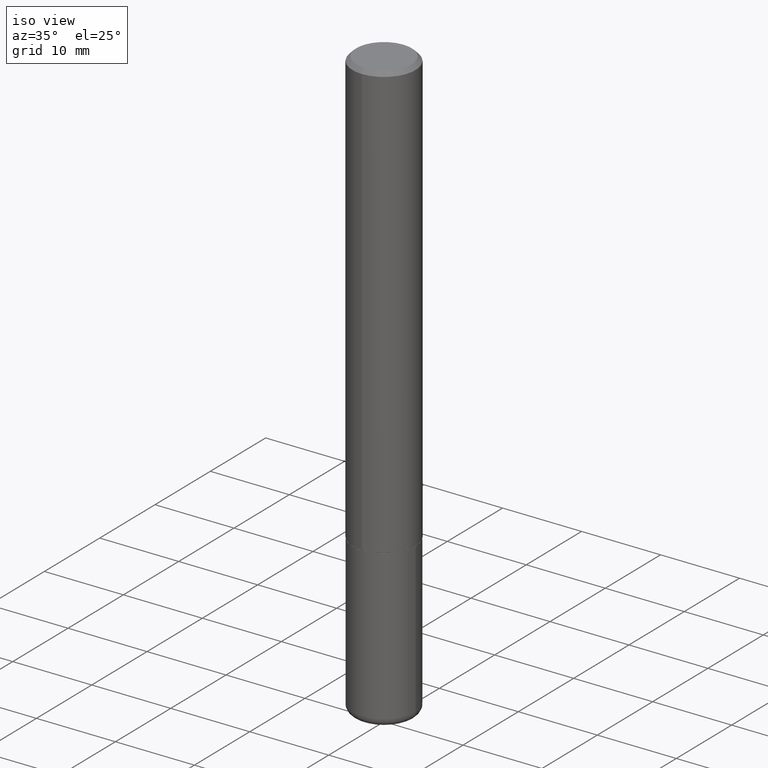
[diagram: clean part render]
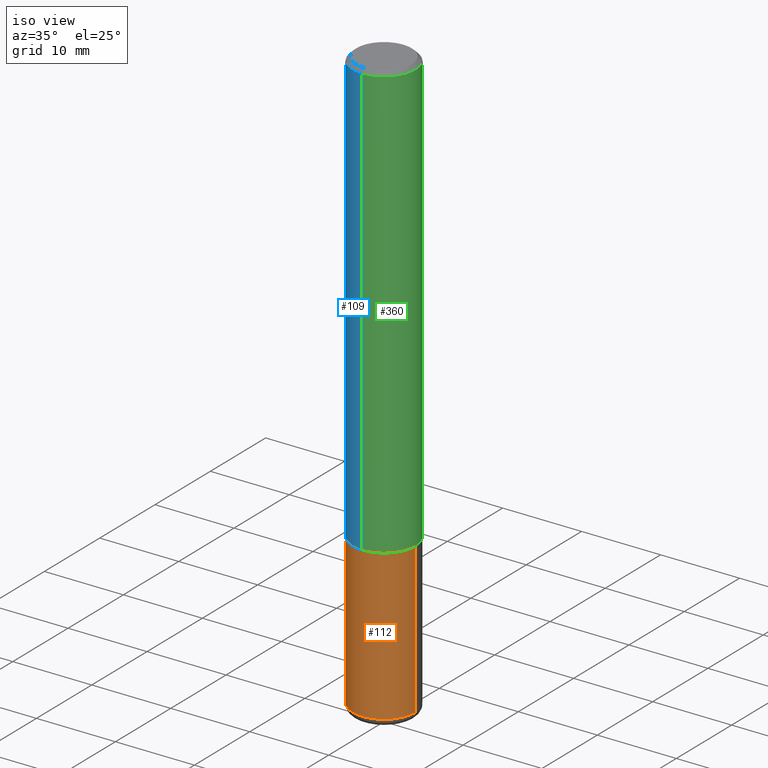
[diagram: same view with three faces highlighted in distinct colors, each labeled with its STEP entity id]
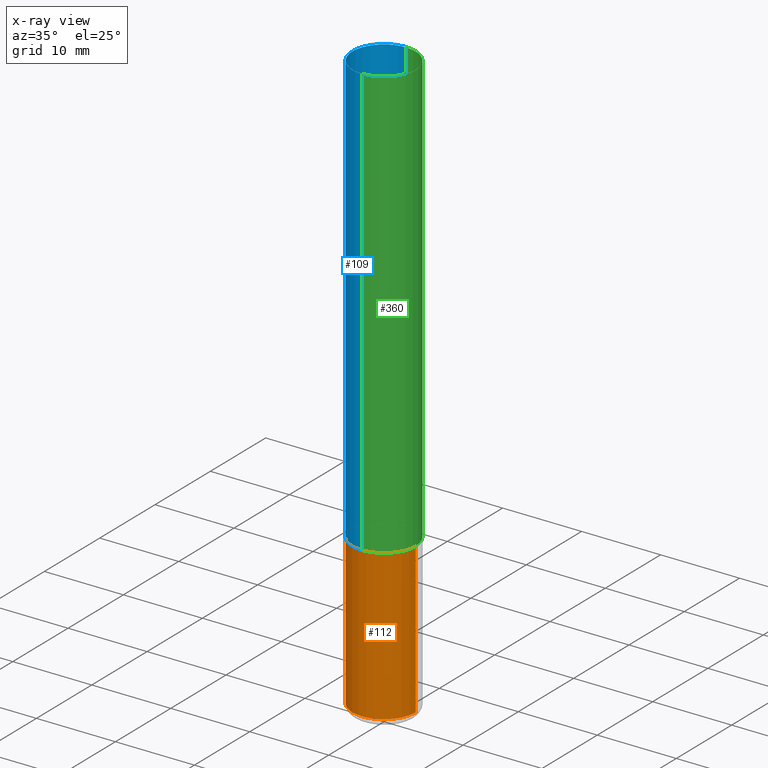
[diagram: x-ray of the same camera — body ghosted, the three highlighted faces saturated]
A machine part, iso view with three faces highlighted in distinct colors.
The next image is the same camera in x-ray (body ghosted, the three faces saturated) — at least one of them is partly hidden behind the body in this view.
Their STEP definitions:

[orange] entity #112 — the highlighted cylindrical surface (partial cylindrical patch) has radius 4.0005 mm, axis along (-0, 0, 1).
#10 = LINE ( 'NONE', #104, #48 ) ;
#27 = CARTESIAN_POINT ( 'NONE',  ( -0.1575000000000000011, -7.747162903036124976E-15, -2.165399999999999991 ) ) ;
#31 = EDGE_LOOP ( 'NONE', ( #301, #143, #282, #152 ) ) ;
#46 = CARTESIAN_POINT ( 'NONE',  ( 0.1575000000000000289, -1.127189835432120758E-14, -2.913399999999999768 ) ) ;
#48 = VECTOR ( 'NONE', #235, 39.37007874015748143 ) ;
#53 = CIRCLE ( 'NONE', #113, 0.1575000000000000011 ) ;
#76 = EDGE_CURVE ( 'NONE', #106, #361, #53, .T. ) ;
#84 = EDGE_CURVE ( 'NONE', #268, #361, #10, .T. ) ;
#85 = AXIS2_PLACEMENT_3D ( 'NONE', #343, #144, #299 ) ;
#95 = VECTOR ( 'NONE', #140, 39.37007874015748143 ) ;
#104 = CARTESIAN_POINT ( 'NONE',  ( 0.1575000000000000011, -1.099816621735586889E-15, 7.679978421878598033E-30 ) ) ;
#106 = VERTEX_POINT ( 'NONE', #27 ) ;
#112 = ADVANCED_FACE ( 'NONE', ( #179 ), #209, .T. ) ;
#113 = AXIS2_PLACEMENT_3D ( 'NONE', #404, #399, #232 ) ;
#121 = CARTESIAN_POINT ( 'NONE',  ( 7.124628819939776708E-29, -1.017208173258561931E-14, -2.913399999999999768 ) ) ;
#140 = DIRECTION ( 'NONE',  ( -2.445468806185136877E-29, 3.491481338843145188E-15, 1.000000000000000000 ) ) ;
#143 = ORIENTED_EDGE ( 'NONE', *, *, #165, .T. ) ;
#144 = DIRECTION ( 'NONE',  ( -2.445468806185136597E-29, 3.491481338843145583E-15, 1.000000000000000000 ) ) ;
#152 = ORIENTED_EDGE ( 'NONE', *, *, #76, .F. ) ;
#165 = EDGE_CURVE ( 'NONE', #191, #268, #270, .T. ) ;
#179 = FACE_OUTER_BOUND ( 'NONE', #31, .T. ) ;
#191 = VERTEX_POINT ( 'NONE', #256 ) ;
#209 = CYLINDRICAL_SURFACE ( 'NONE', #85, 0.1575000000000000011 ) ;
#232 = DIRECTION ( 'NONE',  ( 1.000000000000000000, -6.982962677686268288E-15, 0.000000000000000000 ) ) ;
#235 = DIRECTION ( 'NONE',  ( -2.445468806185136877E-29, 3.491481338843145188E-15, 1.000000000000000000 ) ) ;
#253 = DIRECTION ( 'NONE',  ( -2.445468806185136597E-29, 3.491481338843145583E-15, 1.000000000000000000 ) ) ;
#256 = CARTESIAN_POINT ( 'NONE',  ( -0.1575000000000000289, -9.052976923763463288E-15, -2.913399999999999768 ) ) ;
#268 = VERTEX_POINT ( 'NONE', #46 ) ;
#270 = CIRCLE ( 'NONE', #274, 0.1575000000000000011 ) ;
#274 = AXIS2_PLACEMENT_3D ( 'NONE', #121, #253, #290 ) ;
#282 = ORIENTED_EDGE ( 'NONE', *, *, #84, .T. ) ;
#285 = CARTESIAN_POINT ( 'NONE',  ( -0.1575000000000000011, 1.119104808822157801E-15, -7.747322767151475583E-30 ) ) ;
#290 = DIRECTION ( 'NONE',  ( 1.000000000000000000, -6.982962677686261977E-15, 0.000000000000000000 ) ) ;
#299 = DIRECTION ( 'NONE',  ( 1.000000000000000000, -6.982962677686265922E-15, 4.876176775795935232E-29 ) ) ;
#301 = ORIENTED_EDGE ( 'NONE', *, *, #393, .F. ) ;
#309 = LINE ( 'NONE', #285, #95 ) ;
#343 = CARTESIAN_POINT ( 'NONE',  ( 0.000000000000000000, 0.000000000000000000, 0.000000000000000000 ) ) ;
#361 = VERTEX_POINT ( 'NONE', #371 ) ;
#371 = CARTESIAN_POINT ( 'NONE',  ( 0.1575000000000000011, -8.660270312866534114E-15, -2.165399999999999991 ) ) ;
#393 = EDGE_CURVE ( 'NONE', #191, #106, #309, .T. ) ;
#399 = DIRECTION ( 'NONE',  ( -2.445468806185136597E-29, 3.491481338843145583E-15, 1.000000000000000000 ) ) ;
#404 = CARTESIAN_POINT ( 'NONE',  ( 5.295418152913294345E-29, -7.560453691130947423E-15, -2.165399999999999991 ) ) ;

[blue] entity #109 — the highlighted cylindrical surface (partial cylindrical patch) has radius 4.0005 mm, axis along (-0, 0, 1).
#13 = CARTESIAN_POINT ( 'NONE',  ( 5.291802256310474180E-29, -7.558638329013498276E-15, -2.164399999999999658 ) ) ;
#17 = VECTOR ( 'NONE', #52, 39.37007874015748143 ) ;
#18 = CARTESIAN_POINT ( 'NONE',  ( 1.099816621735587480E-15, 0.1574999999999999456, -0.02000000000000058328 ) ) ;
#19 = LINE ( 'NONE', #344, #17 ) ;
#22 = VERTEX_POINT ( 'NONE', #240 ) ;
#52 = DIRECTION ( 'NONE',  ( -2.444928043019069524E-29, 3.492255742475281487E-15, 1.000000000000000000 ) ) ;
#57 = DIRECTION ( 'NONE',  ( -6.982962677686265133E-15, -1.000000000000000000, 3.492255742475281487E-15 ) ) ;
#81 = EDGE_LOOP ( 'NONE', ( #381, #102, #220, #96 ) ) ;
#83 = CARTESIAN_POINT ( 'NONE',  ( 1.119104808822185805E-15, 0.1574999999999927569, -2.164400000000000102 ) ) ;
#88 = AXIS2_PLACEMENT_3D ( 'NONE', #13, #150, #250 ) ;
#89 = CARTESIAN_POINT ( 'NONE',  ( -1.080528434649015779E-15, -0.1575000000000000844, -0.01999999999999948347 ) ) ;
#96 = ORIENTED_EDGE ( 'NONE', *, *, #205, .F. ) ;
#102 = ORIENTED_EDGE ( 'NONE', *, *, #226, .T. ) ;
#108 = CARTESIAN_POINT ( 'NONE',  ( -1.099816621735587875E-15, -0.1575000000000001676, 5.500302794398574170E-16 ) ) ;
#109 = ADVANCED_FACE ( 'NONE', ( #149 ), #346, .T. ) ;
#149 = FACE_OUTER_BOUND ( 'NONE', #81, .T. ) ;
#150 = DIRECTION ( 'NONE',  ( -2.444928043019069804E-29, 3.492255742475281487E-15, 1.000000000000000000 ) ) ;
#153 = CIRCLE ( 'NONE', #199, 0.1575000000000000289 ) ;
#173 = DIRECTION ( 'NONE',  ( -2.444928043019069524E-29, 3.492255742475281487E-15, 1.000000000000000000 ) ) ;
#177 = DIRECTION ( 'NONE',  ( -6.982962677686264344E-15, -1.000000000000000000, 3.496114991891764787E-15 ) ) ;
#184 = CARTESIAN_POINT ( 'NONE',  ( 0.000000000000000000, 0.000000000000000000, 0.000000000000000000 ) ) ;
#190 = VERTEX_POINT ( 'NONE', #89 ) ;
#199 = AXIS2_PLACEMENT_3D ( 'NONE', #372, #206, #177 ) ;
#205 = EDGE_CURVE ( 'NONE', #331, #190, #153, .T. ) ;
#206 = DIRECTION ( 'NONE',  ( -2.444928043019069804E-29, 3.492255742475281487E-15, 1.000000000000000000 ) ) ;
#220 = ORIENTED_EDGE ( 'NONE', *, *, #414, .T. ) ;
#226 = EDGE_CURVE ( 'NONE', #379, #22, #348, .T. ) ;
#240 = CARTESIAN_POINT ( 'NONE',  ( -1.099816621735536007E-15, -0.1575000000000078559, -2.164399999999999213 ) ) ;
#248 = LINE ( 'NONE', #108, #363 ) ;
#250 = DIRECTION ( 'NONE',  ( -6.982962677686265133E-15, -1.000000000000000000, 3.469013325287946588E-15 ) ) ;
#300 = EDGE_CURVE ( 'NONE', #379, #331, #19, .T. ) ;
#320 = DIRECTION ( 'NONE',  ( -2.444928043019069804E-29, 3.492255742475281487E-15, 1.000000000000000000 ) ) ;
#331 = VERTEX_POINT ( 'NONE', #18 ) ;
#344 = CARTESIAN_POINT ( 'NONE',  ( 1.119104808822158787E-15, 0.1575000000000001676, -5.500302794398574170E-16 ) ) ;
#346 = CYLINDRICAL_SURFACE ( 'NONE', #367, 0.1575000000000001676 ) ;
#348 = CIRCLE ( 'NONE', #88, 0.1575000000000003064 ) ;
#363 = VECTOR ( 'NONE', #173, 39.37007874015748143 ) ;
#367 = AXIS2_PLACEMENT_3D ( 'NONE', #184, #320, #57 ) ;
#372 = CARTESIAN_POINT ( 'NONE',  ( 4.889856086038147210E-31, -6.984511484950574659E-17, -0.02000000000000003511 ) ) ;
#379 = VERTEX_POINT ( 'NONE', #83 ) ;
#381 = ORIENTED_EDGE ( 'NONE', *, *, #300, .F. ) ;
#414 = EDGE_CURVE ( 'NONE', #22, #190, #248, .T. ) ;

[green] entity #360 — the highlighted cylindrical surface (partial cylindrical patch) has radius 4.0005 mm, axis along (-0, 0, 1).
#3 = CARTESIAN_POINT ( 'NONE',  ( 5.291802256310474180E-29, -7.558638329013498276E-15, -2.164399999999999658 ) ) ;
#17 = VECTOR ( 'NONE', #52, 39.37007874015748143 ) ;
#18 = CARTESIAN_POINT ( 'NONE',  ( 1.099816621735587480E-15, 0.1574999999999999456, -0.02000000000000058328 ) ) ;
#19 = LINE ( 'NONE', #344, #17 ) ;
#21 = EDGE_CURVE ( 'NONE', #190, #331, #362, .T. ) ;
#22 = VERTEX_POINT ( 'NONE', #240 ) ;
#52 = DIRECTION ( 'NONE',  ( -2.444928043019069524E-29, 3.492255742475281487E-15, 1.000000000000000000 ) ) ;
#75 = CARTESIAN_POINT ( 'NONE',  ( 0.000000000000000000, 0.000000000000000000, 0.000000000000000000 ) ) ;
#77 = CIRCLE ( 'NONE', #181, 0.1575000000000003064 ) ;
#82 = ORIENTED_EDGE ( 'NONE', *, *, #119, .T. ) ;
#83 = CARTESIAN_POINT ( 'NONE',  ( 1.119104808822185805E-15, 0.1574999999999927569, -2.164400000000000102 ) ) ;
#89 = CARTESIAN_POINT ( 'NONE',  ( -1.080528434649015779E-15, -0.1575000000000000844, -0.01999999999999948347 ) ) ;
#100 = DIRECTION ( 'NONE',  ( -2.444928043019069804E-29, 3.492255742475281487E-15, 1.000000000000000000 ) ) ;
#108 = CARTESIAN_POINT ( 'NONE',  ( -1.099816621735587875E-15, -0.1575000000000001676, 5.500302794398574170E-16 ) ) ;
#119 = EDGE_CURVE ( 'NONE', #22, #379, #77, .T. ) ;
#172 = DIRECTION ( 'NONE',  ( -2.444928043019069804E-29, 3.492255742475281487E-15, 1.000000000000000000 ) ) ;
#173 = DIRECTION ( 'NONE',  ( -2.444928043019069524E-29, 3.492255742475281487E-15, 1.000000000000000000 ) ) ;
#180 = DIRECTION ( 'NONE',  ( -2.444928043019069804E-29, 3.492255742475281487E-15, 1.000000000000000000 ) ) ;
#181 = AXIS2_PLACEMENT_3D ( 'NONE', #3, #100, #387 ) ;
#186 = ORIENTED_EDGE ( 'NONE', *, *, #21, .F. ) ;
#190 = VERTEX_POINT ( 'NONE', #89 ) ;
#213 = DIRECTION ( 'NONE',  ( -6.982962677686265133E-15, -1.000000000000000000, 3.492255742475281487E-15 ) ) ;
#225 = AXIS2_PLACEMENT_3D ( 'NONE', #75, #180, #213 ) ;
#239 = CYLINDRICAL_SURFACE ( 'NONE', #225, 0.1575000000000001676 ) ;
#240 = CARTESIAN_POINT ( 'NONE',  ( -1.099816621735536007E-15, -0.1575000000000078559, -2.164399999999999213 ) ) ;
#248 = LINE ( 'NONE', #108, #363 ) ;
#300 = EDGE_CURVE ( 'NONE', #379, #331, #19, .T. ) ;
#315 = DIRECTION ( 'NONE',  ( -6.982962677686264344E-15, -1.000000000000000000, 3.496114991891764787E-15 ) ) ;
#331 = VERTEX_POINT ( 'NONE', #18 ) ;
#344 = CARTESIAN_POINT ( 'NONE',  ( 1.119104808822158787E-15, 0.1575000000000001676, -5.500302794398574170E-16 ) ) ;
#345 = ORIENTED_EDGE ( 'NONE', *, *, #300, .T. ) ;
#347 = EDGE_LOOP ( 'NONE', ( #82, #345, #186, #365 ) ) ;
#360 = ADVANCED_FACE ( 'NONE', ( #373 ), #239, .T. ) ;
#362 = CIRCLE ( 'NONE', #415, 0.1575000000000000289 ) ;
#363 = VECTOR ( 'NONE', #173, 39.37007874015748143 ) ;
#365 = ORIENTED_EDGE ( 'NONE', *, *, #414, .F. ) ;
#373 = FACE_OUTER_BOUND ( 'NONE', #347, .T. ) ;
#374 = CARTESIAN_POINT ( 'NONE',  ( 4.889856086038147210E-31, -6.984511484950574659E-17, -0.02000000000000003511 ) ) ;
#379 = VERTEX_POINT ( 'NONE', #83 ) ;
#387 = DIRECTION ( 'NONE',  ( -6.982962677686265133E-15, -1.000000000000000000, 3.469013325287946588E-15 ) ) ;
#414 = EDGE_CURVE ( 'NONE', #22, #190, #248, .T. ) ;
#415 = AXIS2_PLACEMENT_3D ( 'NONE', #374, #172, #315 ) ;